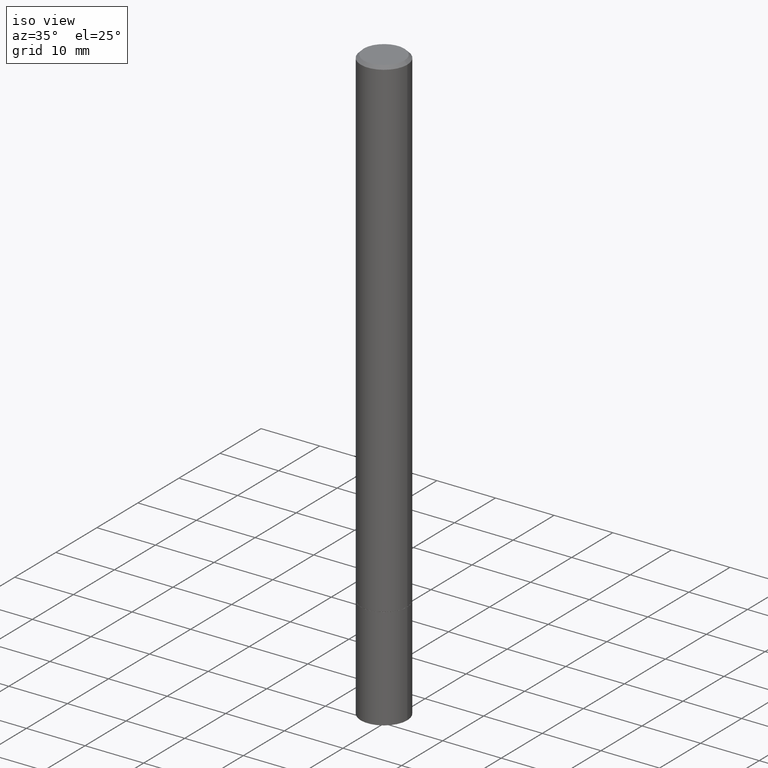
[diagram: clean part render]
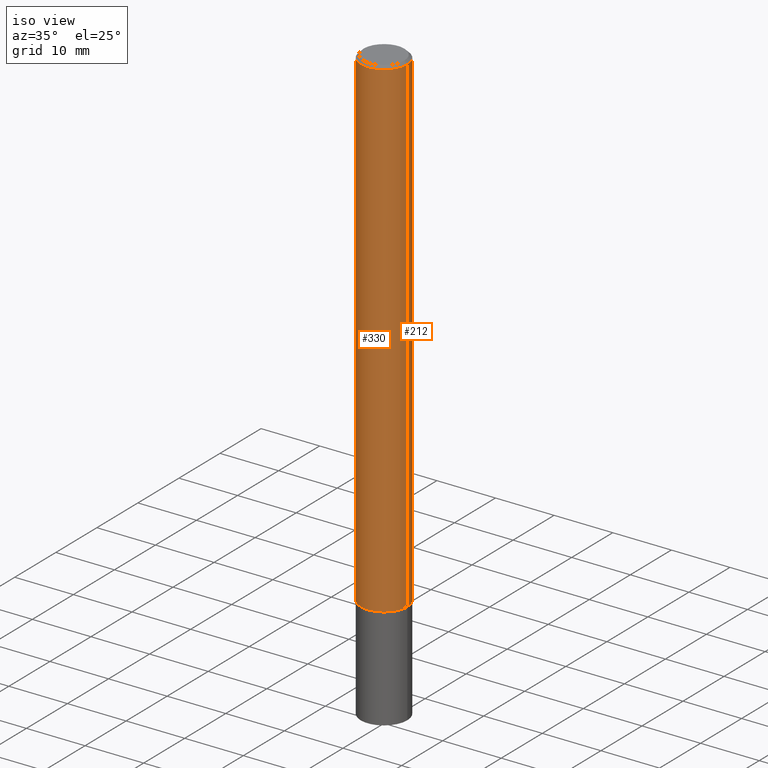
[diagram: same view with one multi-face feature highlighted, each face labeled with its STEP entity id]
A machine part, iso view. The highlighted faces form ONE feature: a constant-radius fillet chain: 2 tangent blend faces with common blend radius 3.9687 mm. The faces share edges in the B-rep.
Their STEP definitions:
[1] entity #212 (Cylinder):
#12 = VERTEX_POINT ( 'NONE', #265 ) ;
#13 = DIRECTION ( 'NONE',  ( 1.000000000000000000, -6.982962677686262766E-15, 0.000000000000000000 ) ) ;
#22 = CARTESIAN_POINT ( 'NONE',  ( 0.1562500000000000000, -1.265138263129813571E-14, -3.311000000000000387 ) ) ;
#23 = DIRECTION ( 'NONE',  ( 1.000000000000000000, -6.982962677686266711E-15, 4.876176775795935232E-29 ) ) ;
#25 = AXIS2_PLACEMENT_3D ( 'NONE', #70, #107, #138 ) ;
#27 = DIRECTION ( 'NONE',  ( -2.445468806185136877E-29, 3.491481338843145188E-15, 1.000000000000000000 ) ) ;
#29 = DIRECTION ( 'NONE',  ( -2.445468806185136597E-29, 3.491481338843145583E-15, 1.000000000000000000 ) ) ;
#34 = LINE ( 'NONE', #199, #232 ) ;
#35 = DIRECTION ( 'NONE',  ( -2.445468806185136877E-29, 3.491481338843145188E-15, 1.000000000000000000 ) ) ;
#69 = VERTEX_POINT ( 'NONE', #319 ) ;
#70 = CARTESIAN_POINT ( 'NONE',  ( 4.890937612370278413E-31, -6.982962677686297772E-17, -0.02000000000000002123 ) ) ;
#82 = CIRCLE ( 'NONE', #364, 0.1562500000000000000 ) ;
#87 = ORIENTED_EDGE ( 'NONE', *, *, #300, .F. ) ;
#100 = CARTESIAN_POINT ( 'NONE',  ( 0.000000000000000000, 0.000000000000000000, 0.000000000000000000 ) ) ;
#107 = DIRECTION ( 'NONE',  ( -2.445468806185136597E-29, 3.491481338843145583E-15, 1.000000000000000000 ) ) ;
#124 = ORIENTED_EDGE ( 'NONE', *, *, #360, .T. ) ;
#138 = DIRECTION ( 'NONE',  ( 1.000000000000000000, -6.982962677686269077E-15, 0.000000000000000000 ) ) ;
#155 = VERTEX_POINT ( 'NONE', #22 ) ;
#161 = EDGE_CURVE ( 'NONE', #12, #184, #277, .T. ) ;
#163 = FACE_OUTER_BOUND ( 'NONE', #211, .T. ) ;
#172 = DIRECTION ( 'NONE',  ( -2.445468806185136597E-29, 3.491481338843145583E-15, 1.000000000000000000 ) ) ;
#175 = CARTESIAN_POINT ( 'NONE',  ( 8.096947217278987693E-29, -1.156029471290965575E-14, -3.311000000000000387 ) ) ;
#184 = VERTEX_POINT ( 'NONE', #336 ) ;
#199 = CARTESIAN_POINT ( 'NONE',  ( 0.1562499999999998057, -1.091087918388477793E-15, 7.619026212181139167E-30 ) ) ;
#202 = ORIENTED_EDGE ( 'NONE', *, *, #227, .F. ) ;
#211 = EDGE_LOOP ( 'NONE', ( #124, #348, #202, #87 ) ) ;
#212 = ADVANCED_FACE ( 'NONE', ( #163 ), #356, .T. ) ;
#227 = EDGE_CURVE ( 'NONE', #69, #184, #253, .T. ) ;
#232 = VECTOR ( 'NONE', #35, 39.37007874015748143 ) ;
#253 = CIRCLE ( 'NONE', #25, 0.1562499999999995837 ) ;
#265 = CARTESIAN_POINT ( 'NONE',  ( -0.1562500000000000000, -4.704839145218096672E-15, -3.311000000000000387 ) ) ;
#277 = LINE ( 'NONE', #278, #327 ) ;
#278 = CARTESIAN_POINT ( 'NONE',  ( -0.1562499999999998057, 1.110223024625155160E-15, -7.685836078523279949E-30 ) ) ;
#300 = EDGE_CURVE ( 'NONE', #155, #69, #34, .T. ) ;
#319 = CARTESIAN_POINT ( 'NONE',  ( 0.1562499999999995837, -1.141782438928661949E-15, -0.02000000000000002123 ) ) ;
#327 = VECTOR ( 'NONE', #27, 39.37007874015748143 ) ;
#335 = AXIS2_PLACEMENT_3D ( 'NONE', #100, #29, #23 ) ;
#336 = CARTESIAN_POINT ( 'NONE',  ( -0.1562499999999995837, 1.021258291611613509E-15, -0.02000000000000002123 ) ) ;
#348 = ORIENTED_EDGE ( 'NONE', *, *, #161, .T. ) ;
#356 = CYLINDRICAL_SURFACE ( 'NONE', #335, 0.1562499999999998057 ) ;
#360 = EDGE_CURVE ( 'NONE', #155, #12, #82, .T. ) ;
#364 = AXIS2_PLACEMENT_3D ( 'NONE', #175, #172, #13 ) ;
[2] entity #330 (Cylinder):
#11 = DIRECTION ( 'NONE',  ( 1.000000000000000000, -6.982962677686266711E-15, 4.876176775795935232E-29 ) ) ;
#12 = VERTEX_POINT ( 'NONE', #265 ) ;
#22 = CARTESIAN_POINT ( 'NONE',  ( 0.1562500000000000000, -1.265138263129813571E-14, -3.311000000000000387 ) ) ;
#27 = DIRECTION ( 'NONE',  ( -2.445468806185136877E-29, 3.491481338843145188E-15, 1.000000000000000000 ) ) ;
#31 = ORIENTED_EDGE ( 'NONE', *, *, #300, .T. ) ;
#34 = LINE ( 'NONE', #199, #232 ) ;
#35 = DIRECTION ( 'NONE',  ( -2.445468806185136877E-29, 3.491481338843145188E-15, 1.000000000000000000 ) ) ;
#49 = CARTESIAN_POINT ( 'NONE',  ( 4.890937612370278413E-31, -6.982962677686297772E-17, -0.02000000000000002123 ) ) ;
#54 = CYLINDRICAL_SURFACE ( 'NONE', #114, 0.1562499999999998057 ) ;
#56 = DIRECTION ( 'NONE',  ( -2.445468806185136597E-29, 3.491481338843145583E-15, 1.000000000000000000 ) ) ;
#69 = VERTEX_POINT ( 'NONE', #319 ) ;
#85 = CARTESIAN_POINT ( 'NONE',  ( 8.096947217278987693E-29, -1.156029471290965575E-14, -3.311000000000000387 ) ) ;
#114 = AXIS2_PLACEMENT_3D ( 'NONE', #313, #56, #11 ) ;
#131 = AXIS2_PLACEMENT_3D ( 'NONE', #85, #345, #236 ) ;
#136 = EDGE_CURVE ( 'NONE', #184, #69, #223, .T. ) ;
#155 = VERTEX_POINT ( 'NONE', #22 ) ;
#161 = EDGE_CURVE ( 'NONE', #12, #184, #277, .T. ) ;
#184 = VERTEX_POINT ( 'NONE', #336 ) ;
#188 = DIRECTION ( 'NONE',  ( 1.000000000000000000, -6.982962677686269077E-15, 0.000000000000000000 ) ) ;
#199 = CARTESIAN_POINT ( 'NONE',  ( 0.1562499999999998057, -1.091087918388477793E-15, 7.619026212181139167E-30 ) ) ;
#206 = ORIENTED_EDGE ( 'NONE', *, *, #342, .T. ) ;
#221 = DIRECTION ( 'NONE',  ( -2.445468806185136597E-29, 3.491481338843145583E-15, 1.000000000000000000 ) ) ;
#223 = CIRCLE ( 'NONE', #283, 0.1562499999999995837 ) ;
#228 = ORIENTED_EDGE ( 'NONE', *, *, #161, .F. ) ;
#229 = FACE_OUTER_BOUND ( 'NONE', #346, .T. ) ;
#232 = VECTOR ( 'NONE', #35, 39.37007874015748143 ) ;
#236 = DIRECTION ( 'NONE',  ( 1.000000000000000000, -6.982962677686262766E-15, 0.000000000000000000 ) ) ;
#251 = CIRCLE ( 'NONE', #131, 0.1562500000000000000 ) ;
#265 = CARTESIAN_POINT ( 'NONE',  ( -0.1562500000000000000, -4.704839145218096672E-15, -3.311000000000000387 ) ) ;
#277 = LINE ( 'NONE', #278, #327 ) ;
#278 = CARTESIAN_POINT ( 'NONE',  ( -0.1562499999999998057, 1.110223024625155160E-15, -7.685836078523279949E-30 ) ) ;
#283 = AXIS2_PLACEMENT_3D ( 'NONE', #49, #221, #188 ) ;
#300 = EDGE_CURVE ( 'NONE', #155, #69, #34, .T. ) ;
#313 = CARTESIAN_POINT ( 'NONE',  ( 0.000000000000000000, 0.000000000000000000, 0.000000000000000000 ) ) ;
#319 = CARTESIAN_POINT ( 'NONE',  ( 0.1562499999999995837, -1.141782438928661949E-15, -0.02000000000000002123 ) ) ;
#327 = VECTOR ( 'NONE', #27, 39.37007874015748143 ) ;
#330 = ADVANCED_FACE ( 'NONE', ( #229 ), #54, .T. ) ;
#336 = CARTESIAN_POINT ( 'NONE',  ( -0.1562499999999995837, 1.021258291611613509E-15, -0.02000000000000002123 ) ) ;
#342 = EDGE_CURVE ( 'NONE', #12, #155, #251, .T. ) ;
#345 = DIRECTION ( 'NONE',  ( -2.445468806185136597E-29, 3.491481338843145583E-15, 1.000000000000000000 ) ) ;
#346 = EDGE_LOOP ( 'NONE', ( #228, #206, #31, #350 ) ) ;
#350 = ORIENTED_EDGE ( 'NONE', *, *, #136, .F. ) ;